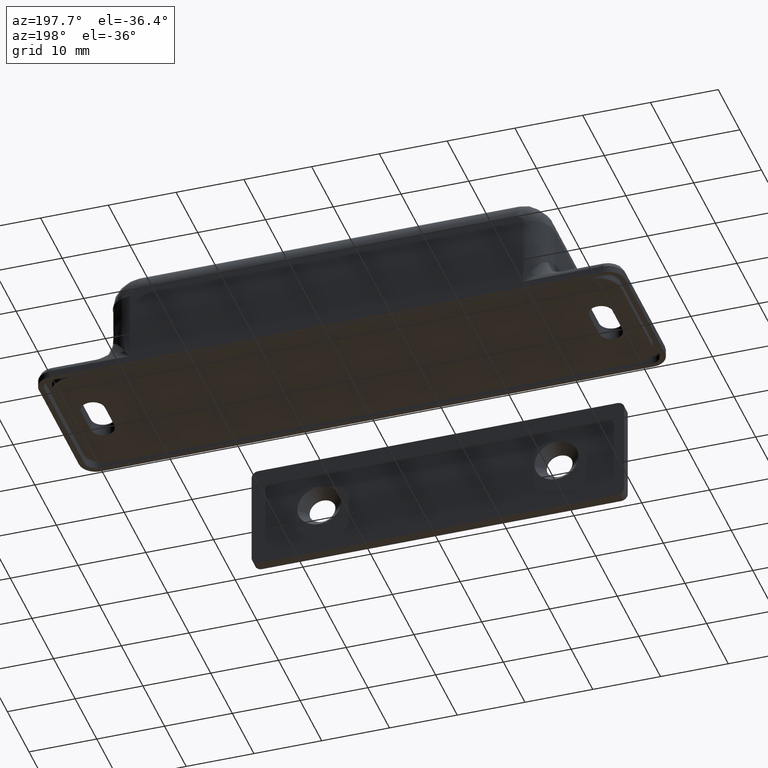
[diagram: clean part render]
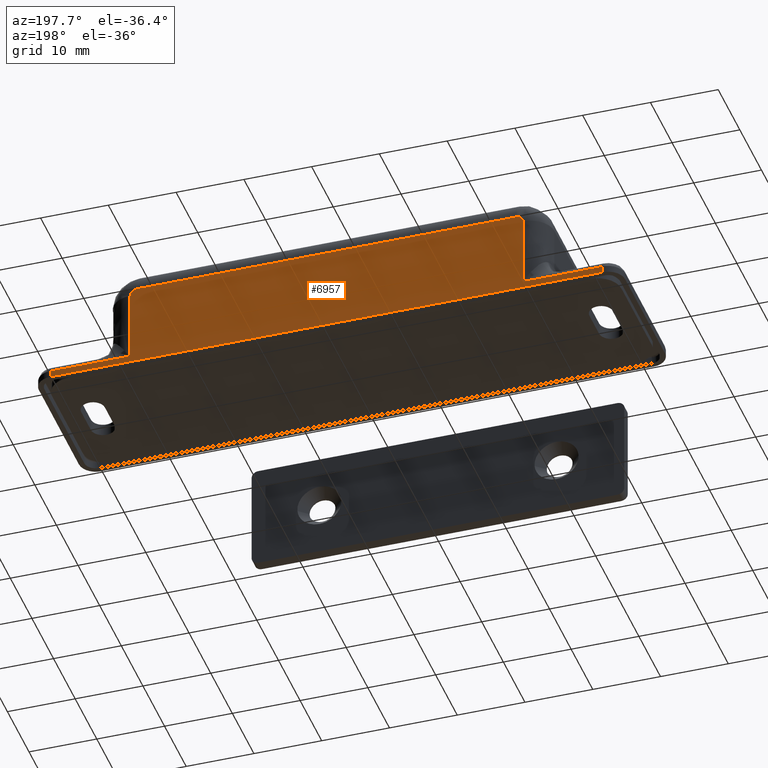
[diagram: same view with one face highlighted and labeled with its STEP entity id]
A machine part, auxiliary view. The second image highlights one B-rep face of the part: STEP entity #6957.
In plain terms, the highlighted face is a freeform B-spline surface patch.
Its self-contained STEP definition (entity closure, byte-faithful):
#5005=CARTESIAN_POINT('',(29.0,11.750000000000000,1.0));
#5006=VERTEX_POINT('',#5005);
#5452=CARTESIAN_POINT('',(-29.000003000000000,11.750000000000000,1.0));
#5453=VERTEX_POINT('',#5452);
#5692=CARTESIAN_POINT('',(-40.750003000000000,11.750000000000000,1.0));
#5693=VERTEX_POINT('',#5692);
#5757=CARTESIAN_POINT('',(-40.750003000000000,11.750000000000000,1.0));
#5758=CARTESIAN_POINT('',(-29.000003000000000,11.750000000000000,1.0));
#5759=QUASI_UNIFORM_CURVE('',1,(#5757,#5758),.UNSPECIFIED.,.F.,.U.);
#5760=EDGE_CURVE('',#5693,#5453,#5759,.T.);
#5937=CARTESIAN_POINT('',(40.750000000000000,11.750000000000000,1.0));
#5938=VERTEX_POINT('',#5937);
#5998=CARTESIAN_POINT('',(29.0,11.750000000000000,1.0));
#5999=CARTESIAN_POINT('',(40.750000000000000,11.750000000000000,1.0));
#6000=QUASI_UNIFORM_CURVE('',1,(#5998,#5999),.UNSPECIFIED.,.F.,.U.);
#6001=EDGE_CURVE('',#5006,#5938,#6000,.T.);
#6072=CARTESIAN_POINT('',(40.750000000000000,11.750000000000140,0.0));
#6073=VERTEX_POINT('',#6072);
#6074=CARTESIAN_POINT('',(40.750000000000000,11.750000000000000,1.0));
#6075=CARTESIAN_POINT('',(40.750000000000000,11.750000000000140,0.0));
#6076=QUASI_UNIFORM_CURVE('',1,(#6074,#6075),.UNSPECIFIED.,.F.,.U.);
#6077=EDGE_CURVE('',#5938,#6073,#6076,.T.);
#6125=CARTESIAN_POINT('',(-40.750003000000000,11.750000000000140,0.0));
#6126=VERTEX_POINT('',#6125);
#6127=CARTESIAN_POINT('',(-40.750003000000000,11.750000000000140,0.0));
#6128=CARTESIAN_POINT('',(-40.750003000000000,11.750000000000000,1.0));
#6129=QUASI_UNIFORM_CURVE('',1,(#6127,#6128),.UNSPECIFIED.,.F.,.U.);
#6130=EDGE_CURVE('',#6126,#5693,#6129,.T.);
#6228=CARTESIAN_POINT('',(-28.000003000000000,11.750000000000000,12.500000000000000));
#6229=VERTEX_POINT('',#6228);
#6245=CARTESIAN_POINT('',(-29.000003000000000,11.750000000000000,11.500000000000000));
#6246=VERTEX_POINT('',#6245);
#6247=CARTESIAN_POINT('',(-28.000003000000000,11.750000000000000,12.500000000000000));
#6248=CARTESIAN_POINT('',(-29.000002999999996,11.750000000000002,12.500000000000000));
#6249=CARTESIAN_POINT('',(-29.000003000000000,11.750000000000000,11.500000000000000));
#6257=(BOUNDED_CURVE()B_SPLINE_CURVE(2,(#6247,#6248,#6249),.UNSPECIFIED.,.F.,.U.)CURVE()GEOMETRIC_REPRESENTATION_ITEM()QUASI_UNIFORM_CURVE()RATIONAL_B_SPLINE_CURVE((1.0,0.707106781186548,1.0))REPRESENTATION_ITEM(''));
#6258=EDGE_CURVE('',#6229,#6246,#6257,.T.);
#6590=CARTESIAN_POINT('',(29.0,11.750000000000000,11.500000000000000));
#6591=VERTEX_POINT('',#6590);
#6592=CARTESIAN_POINT('',(28.0,11.750000000000000,12.500000000000000));
#6593=VERTEX_POINT('',#6592);
#6594=CARTESIAN_POINT('',(29.0,11.750000000000000,11.500000000000000));
#6595=CARTESIAN_POINT('',(29.0,11.750000000000002,12.500000000000000));
#6596=CARTESIAN_POINT('',(28.0,11.750000000000000,12.500000000000000));
#6604=(BOUNDED_CURVE()B_SPLINE_CURVE(2,(#6594,#6595,#6596),.UNSPECIFIED.,.F.,.U.)CURVE()GEOMETRIC_REPRESENTATION_ITEM()QUASI_UNIFORM_CURVE()RATIONAL_B_SPLINE_CURVE((1.0,0.707106781186548,1.0))REPRESENTATION_ITEM(''));
#6605=EDGE_CURVE('',#6591,#6593,#6604,.T.);
#6651=CARTESIAN_POINT('',(-28.000003000000000,11.750000000000000,12.500000000000000));
#6652=CARTESIAN_POINT('',(28.0,11.750000000000000,12.500000000000000));
#6653=QUASI_UNIFORM_CURVE('',1,(#6651,#6652),.UNSPECIFIED.,.F.,.U.);
#6654=EDGE_CURVE('',#6229,#6593,#6653,.T.);
#6688=CARTESIAN_POINT('',(-29.000003000000000,11.750000000000000,1.0));
#6689=CARTESIAN_POINT('',(-29.000003000000000,11.750000000000000,11.500000000000000));
#6690=QUASI_UNIFORM_CURVE('',1,(#6688,#6689),.UNSPECIFIED.,.F.,.U.);
#6691=EDGE_CURVE('',#5453,#6246,#6690,.T.);
#6717=CARTESIAN_POINT('',(29.0,11.750000000000000,11.500000000000000));
#6718=CARTESIAN_POINT('',(29.0,11.750000000000000,1.0));
#6719=QUASI_UNIFORM_CURVE('',1,(#6717,#6718),.UNSPECIFIED.,.F.,.U.);
#6720=EDGE_CURVE('',#6591,#5006,#6719,.T.);
#6869=CARTESIAN_POINT('',(40.750000000000000,11.750000000000140,0.0));
#6870=CARTESIAN_POINT('',(-40.750003000000000,11.750000000000140,0.0));
#6871=QUASI_UNIFORM_CURVE('',1,(#6869,#6870),.UNSPECIFIED.,.F.,.U.);
#6872=EDGE_CURVE('',#6073,#6126,#6871,.T.);
#6940=CARTESIAN_POINT('',(-44.820928756950899,11.750000000000000,13.124374975772570));
#6941=CARTESIAN_POINT('',(44.820927214284531,11.750000000000000,13.124374975772570));
#6942=CARTESIAN_POINT('',(-44.820928756950899,11.750000000000000,-0.624375311048700));
#6943=CARTESIAN_POINT('',(44.820927214284531,11.750000000000000,-0.624375311048700));
#6944=B_SPLINE_SURFACE_WITH_KNOTS('',1,1,((#6940,#6942),(#6941,#6943)),.UNSPECIFIED.,.F.,.F.,.U.,(2,2),(2,2),(0.0,89.641855971235429),(0.0,13.748750286821270),.UNSPECIFIED.);
#6945=ORIENTED_EDGE('',*,*,#6130,.T.);
#6946=ORIENTED_EDGE('',*,*,#5760,.T.);
#6947=ORIENTED_EDGE('',*,*,#6691,.T.);
#6948=ORIENTED_EDGE('',*,*,#6258,.F.);
#6949=ORIENTED_EDGE('',*,*,#6654,.T.);
#6950=ORIENTED_EDGE('',*,*,#6605,.F.);
#6951=ORIENTED_EDGE('',*,*,#6720,.T.);
#6952=ORIENTED_EDGE('',*,*,#6001,.T.);
#6953=ORIENTED_EDGE('',*,*,#6077,.T.);
#6954=ORIENTED_EDGE('',*,*,#6872,.T.);
#6955=EDGE_LOOP('',(#6945,#6946,#6947,#6948,#6949,#6950,#6951,#6952,#6953,#6954));
#6956=FACE_OUTER_BOUND('',#6955,.T.);
#6957=ADVANCED_FACE('',(#6956),#6944,.T.);